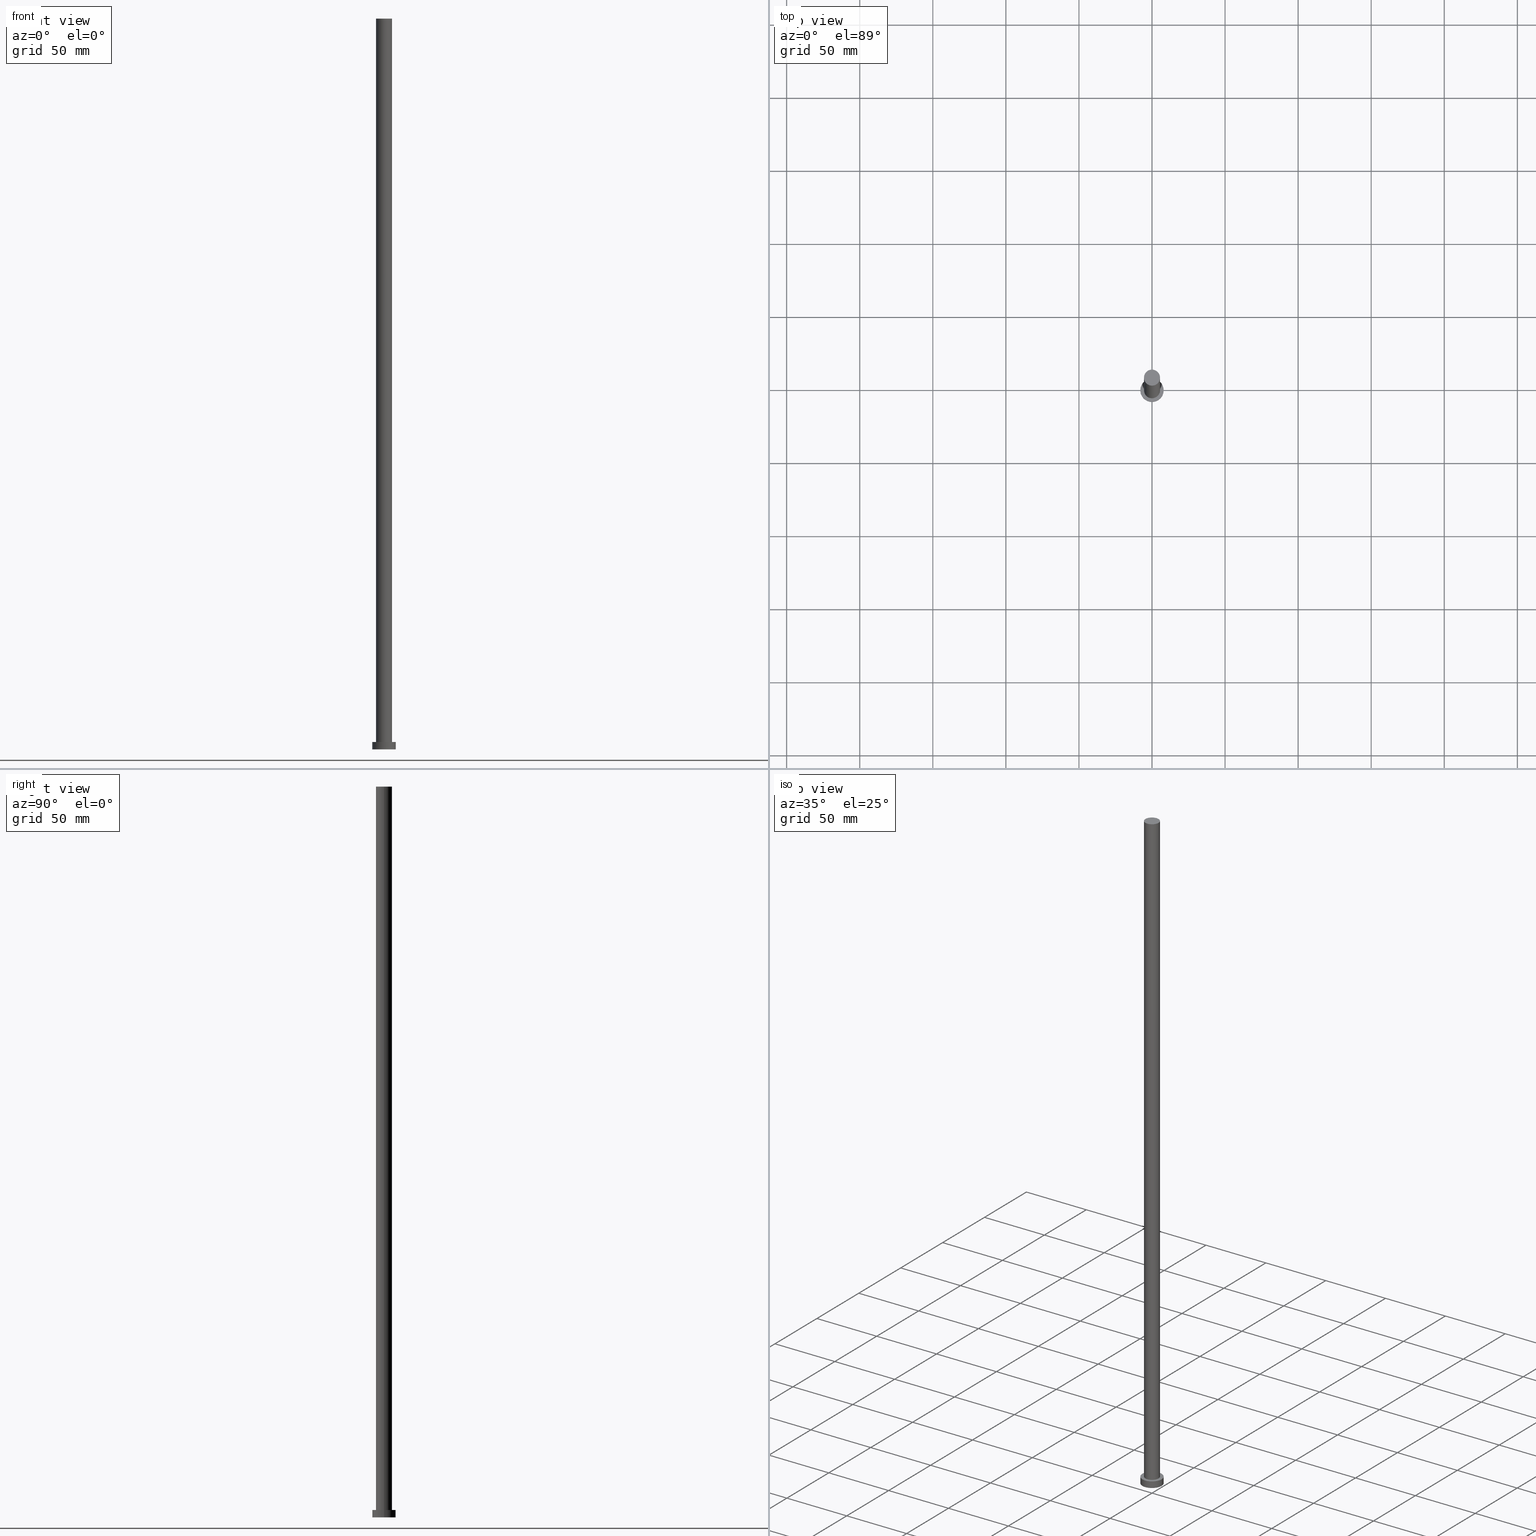
[diagram: canonical four-view strip — front | top / right | iso, engineering-drawing reading convention]
A machine part, canonical four-view strip (front | top / right | iso — engineering-drawing reading convention). The complete STEP part file that produces these views, byte-faithful:
ISO-10303-21;
HEADER;
FILE_DESCRIPTION (( 'STEP AP203' ),
    '1' );
FILE_NAME ('f1d0.STEP',
    '2023-02-12T11:13:44',
    ( '' ),
    ( '' ),
    'SwSTEP 2.0',
    'SolidWorks 2019',
    '' );
FILE_SCHEMA (( 'CONFIG_CONTROL_DESIGN' ));
ENDSEC;

DATA;
#1 = DIRECTION ( 'NONE',  ( -1.000000000000000000, 0.000000000000000000, 0.000000000000000000 ) ) ;
#2 = CIRCLE ( 'NONE', #197, 5.500000000000000000 ) ;
#3 = CARTESIAN_POINT ( 'NONE',  ( 0.000000000000000000, 0.000000000000000000, 0.000000000000000000 ) ) ;
#4 = EDGE_CURVE ( 'NONE', #180, #235, #177, .T. ) ;
#5 = DIRECTION ( 'NONE',  ( 1.000000000000000000, 0.000000000000000000, 0.000000000000000000 ) ) ;
#6 = APPROVAL_DATE_TIME ( #93, #161 ) ;
#7 = VECTOR ( 'NONE', #45, 1000.000000000000000 ) ;
#8 = FACE_BOUND ( 'NONE', #158, .T. ) ;
#9 = COORDINATED_UNIVERSAL_TIME_OFFSET ( 1, 0, .AHEAD. ) ;
#10 = DIRECTION ( 'NONE',  ( 0.000000000000000000, 0.000000000000000000, 1.000000000000000000 ) ) ;
#11 = PERSON_AND_ORGANIZATION ( #218, #201 ) ;
#12 = CALENDAR_DATE ( 2023, 12, 2 ) ;
#13 = VECTOR ( 'NONE', #186, 1000.000000000000000 ) ;
#14 = ORIENTED_EDGE ( 'NONE', *, *, #59, .F. ) ;
#15 = CLOSED_SHELL ( 'NONE', ( #223, #22, #206, #169, #98, #92, #39 ) ) ;
#16 = ORIENTED_EDGE ( 'NONE', *, *, #203, .T. ) ;
#17 = MANIFOLD_SOLID_BREP ( 'P�idat vysunut�m3', #15 ) ;
#18 = UNCERTAINTY_MEASURE_WITH_UNIT (LENGTH_MEASURE( 1.000000000000000082E-05 ), #139, 'distance_accuracy_value', 'NONE');
#19 = CC_DESIGN_PERSON_AND_ORGANIZATION_ASSIGNMENT ( #212, #107, ( #21 ) ) ;
#20 = LINE ( 'NONE', #170, #157 ) ;
#21 = SECURITY_CLASSIFICATION ( '', '', #214 ) ;
#22 = ADVANCED_FACE ( 'NONE', ( #60 ), #142, .T. ) ;
#23 = CARTESIAN_POINT ( 'NONE',  ( 0.000000000000000000, 0.000000000000000000, 500.0000000000000000 ) ) ;
#24 = CC_DESIGN_PERSON_AND_ORGANIZATION_ASSIGNMENT ( #65, #149, ( #181 ) ) ;
#25 = CARTESIAN_POINT ( 'NONE',  ( 0.000000000000000000, 0.000000000000000000, 5.000000000000000000 ) ) ;
#26 = APPROVAL_STATUS ( 'not_yet_approved' ) ;
#27 = DIRECTION ( 'NONE',  ( 1.000000000000000000, 0.000000000000000000, -0.000000000000000000 ) ) ;
#28 = CC_DESIGN_APPROVAL ( #154, ( #126 ) ) ;
#29 = APPLICATION_PROTOCOL_DEFINITION ( 'international standard', 'config_control_design', 1994, #168 ) ;
#30 = CARTESIAN_POINT ( 'NONE',  ( 0.000000000000000000, 0.000000000000000000, 500.0000000000000000 ) ) ;
#31 = CALENDAR_DATE ( 2023, 12, 2 ) ;
#32 = EDGE_CURVE ( 'NONE', #111, #73, #138, .T. ) ;
#33 = CC_DESIGN_SECURITY_CLASSIFICATION ( #21, ( #181 ) ) ;
#34 = CC_DESIGN_PERSON_AND_ORGANIZATION_ASSIGNMENT ( #69, #46, ( #181 ) ) ;
#35 = EDGE_LOOP ( 'NONE', ( #99, #202, #164, #160 ) ) ;
#36 = EDGE_LOOP ( 'NONE', ( #40, #199, #182, #14 ) ) ;
#37 = CARTESIAN_POINT ( 'NONE',  ( 0.000000000000000000, 0.000000000000000000, 500.0000000000000000 ) ) ;
#38 = ORIENTED_EDGE ( 'NONE', *, *, #50, .F. ) ;
#39 = ADVANCED_FACE ( 'NONE', ( #43 ), #246, .T. ) ;
#40 = ORIENTED_EDGE ( 'NONE', *, *, #119, .F. ) ;
#41 = CIRCLE ( 'NONE', #234, 8.000000000000000000 ) ;
#42 = DIRECTION ( 'NONE',  ( -1.000000000000000000, 0.000000000000000000, 0.000000000000000000 ) ) ;
#43 = FACE_OUTER_BOUND ( 'NONE', #253, .T. ) ;
#44 = CC_DESIGN_DATE_AND_TIME_ASSIGNMENT ( #194, #152, ( #21 ) ) ;
#45 = DIRECTION ( 'NONE',  ( -0.000000000000000000, -0.000000000000000000, -1.000000000000000000 ) ) ;
#46 = PERSON_AND_ORGANIZATION_ROLE ( 'design_supplier' ) ;
#47 = DIRECTION ( 'NONE',  ( 0.000000000000000000, 0.000000000000000000, 1.000000000000000000 ) ) ;
#48 = CIRCLE ( 'NONE', #144, 5.500000000000000000 ) ;
#49 = LOCAL_TIME ( 12, 13, 44.00000000000000000, #176 ) ;
#50 = EDGE_CURVE ( 'NONE', #252, #111, #41, .T. ) ;
#51 = EDGE_CURVE ( 'NONE', #114, #53, #48, .T. ) ;
#52 = VERTEX_POINT ( 'NONE', #90 ) ;
#53 = VERTEX_POINT ( 'NONE', #209 ) ;
#54 = AXIS2_PLACEMENT_3D ( 'NONE', #37, #236, #1 ) ;
#55 = DIRECTION ( 'NONE',  ( 1.000000000000000000, 0.000000000000000000, 0.000000000000000000 ) ) ;
#56 = DIRECTION ( 'NONE',  ( -0.000000000000000000, -0.000000000000000000, -1.000000000000000000 ) ) ;
#57 = CC_DESIGN_PERSON_AND_ORGANIZATION_ASSIGNMENT ( #11, #243, ( #126 ) ) ;
#58 = CIRCLE ( 'NONE', #122, 5.500000000000000000 ) ;
#59 = EDGE_CURVE ( 'NONE', #180, #114, #20, .T. ) ;
#60 = FACE_OUTER_BOUND ( 'NONE', #222, .T. ) ;
#61 = CARTESIAN_POINT ( 'NONE',  ( 0.000000000000000000, 0.000000000000000000, 500.0000000000000000 ) ) ;
#62 = APPLICATION_CONTEXT ( 'configuration controlled 3d designs of mechanical parts and assemblies' ) ;
#63 = DIRECTION ( 'NONE',  ( 1.000000000000000000, 0.000000000000000000, 0.000000000000000000 ) ) ;
#64 = LINE ( 'NONE', #105, #151 ) ;
#65 = PERSON_AND_ORGANIZATION ( #218, #201 ) ;
#66 = FACE_OUTER_BOUND ( 'NONE', #35, .T. ) ;
#67 = PERSON_AND_ORGANIZATION ( #218, #201 ) ;
#68 = DIRECTION ( 'NONE',  ( 0.000000000000000000, 0.000000000000000000, 1.000000000000000000 ) ) ;
#69 = PERSON_AND_ORGANIZATION ( #218, #201 ) ;
#70 = AXIS2_PLACEMENT_3D ( 'NONE', #150, #47, #129 ) ;
#71 = APPROVAL_DATE_TIME ( #250, #155 ) ;
#72 = EDGE_CURVE ( 'NONE', #235, #53, #132, .T. ) ;
#73 = VERTEX_POINT ( 'NONE', #104 ) ;
#74 = ORIENTED_EDGE ( 'NONE', *, *, #32, .F. ) ;
#75 = ORIENTED_EDGE ( 'NONE', *, *, #32, .T. ) ;
#76 = PRODUCT_DEFINITION_SHAPE ( 'NONE', 'NONE',  #126 ) ;
#77 = ORIENTED_EDGE ( 'NONE', *, *, #175, .T. ) ;
#78 = AXIS2_PLACEMENT_3D ( 'NONE', #61, #84, #127 ) ;
#79 = DIRECTION ( 'NONE',  ( -0.000000000000000000, -0.000000000000000000, -1.000000000000000000 ) ) ;
#80 = CARTESIAN_POINT ( 'NONE',  ( 0.000000000000000000, 0.000000000000000000, 5.000000000000000000 ) ) ;
#81 = ORIENTED_EDGE ( 'NONE', *, *, #232, .F. ) ;
#82 = AXIS2_PLACEMENT_3D ( 'NONE', #172, #244, #27 ) ;
#83 = LOCAL_TIME ( 12, 13, 44.00000000000000000, #178 ) ;
#84 = DIRECTION ( 'NONE',  ( -0.000000000000000000, -0.000000000000000000, -1.000000000000000000 ) ) ;
#85 = COORDINATED_UNIVERSAL_TIME_OFFSET ( 1, 0, .AHEAD. ) ;
#86 = CYLINDRICAL_SURFACE ( 'NONE', #78, 5.500000000000000000 ) ;
#87 = PERSON_AND_ORGANIZATION ( #218, #201 ) ;
#88 = DIRECTION ( 'NONE',  ( 1.000000000000000000, 0.000000000000000000, 0.000000000000000000 ) ) ;
#89 = MECHANICAL_CONTEXT ( 'NONE', #62, 'mechanical' ) ;
#90 = CARTESIAN_POINT ( 'NONE',  ( -8.000000000000000000, 0.000000000000000000, 0.000000000000000000 ) ) ;
#91 = CALENDAR_DATE ( 2023, 12, 2 ) ;
#92 = ADVANCED_FACE ( 'NONE', ( #66 ), #86, .T. ) ;
#93 = DATE_AND_TIME ( #12, #49 ) ;
#94 = ORIENTED_EDGE ( 'NONE', *, *, #4, .T. ) ;
#95 = ORIENTED_EDGE ( 'NONE', *, *, #203, .F. ) ;
#96 = EDGE_LOOP ( 'NONE', ( #74, #38, #156, #77 ) ) ;
#97 = DIRECTION ( 'NONE',  ( -1.000000000000000000, 0.000000000000000000, 0.000000000000000000 ) ) ;
#98 = ADVANCED_FACE ( 'NONE', ( #211 ), #224, .F. ) ;
#99 = ORIENTED_EDGE ( 'NONE', *, *, #72, .F. ) ;
#100 = AXIS2_PLACEMENT_3D ( 'NONE', #208, #56, #97 ) ;
#101 =( NAMED_UNIT ( * ) SI_UNIT ( $, .STERADIAN. ) SOLID_ANGLE_UNIT ( ) );
#102 = DIRECTION ( 'NONE',  ( 0.000000000000000000, 0.000000000000000000, 1.000000000000000000 ) ) ;
#103 = FACE_OUTER_BOUND ( 'NONE', #36, .T. ) ;
#104 = CARTESIAN_POINT ( 'NONE',  ( 8.000000000000000000, 9.797174393178825657E-16, 0.000000000000000000 ) ) ;
#105 = CARTESIAN_POINT ( 'NONE',  ( -8.000000000000000000, 0.000000000000000000, 5.000000000000000000 ) ) ;
#106 = DIRECTION ( 'NONE',  ( 1.000000000000000000, 0.000000000000000000, -0.000000000000000000 ) ) ;
#107 = PERSON_AND_ORGANIZATION_ROLE ( 'classification_officer' ) ;
#108 = CARTESIAN_POINT ( 'NONE',  ( 0.000000000000000000, 0.000000000000000000, 5.000000000000000000 ) ) ;
#109 = DIRECTION ( 'NONE',  ( 0.000000000000000000, 0.000000000000000000, 1.000000000000000000 ) ) ;
#110 = DIRECTION ( 'NONE',  ( 0.000000000000000000, 0.000000000000000000, 1.000000000000000000 ) ) ;
#111 = VERTEX_POINT ( 'NONE', #228 ) ;
#112 = LOCAL_TIME ( 12, 13, 44.00000000000000000, #9 ) ;
#113 = ADVANCED_BREP_SHAPE_REPRESENTATION ( 'f1d0', ( #17, #239 ), #221 ) ;
#114 = VERTEX_POINT ( 'NONE', #191 ) ;
#115 = AXIS2_PLACEMENT_3D ( 'NONE', #167, #241, #185 ) ;
#116 = PRODUCT ( 'f1d0', 'f1d0', '', ( #89 ) ) ;
#117 = EDGE_LOOP ( 'NONE', ( #135, #118 ) ) ;
#118 = ORIENTED_EDGE ( 'NONE', *, *, #187, .F. ) ;
#119 = EDGE_CURVE ( 'NONE', #235, #180, #2, .T. ) ;
#120 = CARTESIAN_POINT ( 'NONE',  ( 8.000000000000000000, 9.797174393178825657E-16, 5.000000000000000000 ) ) ;
#121 = ORIENTED_EDGE ( 'NONE', *, *, #51, .F. ) ;
#122 = AXIS2_PLACEMENT_3D ( 'NONE', #80, #102, #123 ) ;
#123 = DIRECTION ( 'NONE',  ( 1.000000000000000000, 0.000000000000000000, 0.000000000000000000 ) ) ;
#124 = AXIS2_PLACEMENT_3D ( 'NONE', #108, #229, #55 ) ;
#125 = CARTESIAN_POINT ( 'NONE',  ( 0.000000000000000000, 0.000000000000000000, 5.000000000000000000 ) ) ;
#126 = PRODUCT_DEFINITION ( 'NEZN�M�', '', #181, #162 ) ;
#127 = DIRECTION ( 'NONE',  ( -1.000000000000000000, 0.000000000000000000, 0.000000000000000000 ) ) ;
#128 = PERSON_AND_ORGANIZATION_ROLE ( 'design_owner' ) ;
#129 = DIRECTION ( 'NONE',  ( 1.000000000000000000, 0.000000000000000000, 0.000000000000000000 ) ) ;
#130 = PERSON_AND_ORGANIZATION ( #218, #201 ) ;
#131 = EDGE_CURVE ( 'NONE', #252, #52, #64, .T. ) ;
#132 = LINE ( 'NONE', #242, #7 ) ;
#133 = CC_DESIGN_APPROVAL ( #161, ( #181 ) ) ;
#134 = APPROVAL_ROLE ( '' ) ;
#135 = ORIENTED_EDGE ( 'NONE', *, *, #175, .F. ) ;
#136 = ORIENTED_EDGE ( 'NONE', *, *, #119, .T. ) ;
#137 = LOCAL_TIME ( 12, 13, 44.00000000000000000, #210 ) ;
#138 = LINE ( 'NONE', #120, #13 ) ;
#139 =( LENGTH_UNIT ( ) NAMED_UNIT ( * ) SI_UNIT ( .MILLI., .METRE. ) );
#140 = CYLINDRICAL_SURFACE ( 'NONE', #165, 8.000000000000000000 ) ;
#141 = CIRCLE ( 'NONE', #124, 8.000000000000000000 ) ;
#142 = CYLINDRICAL_SURFACE ( 'NONE', #100, 8.000000000000000000 ) ;
#143 = DIRECTION ( 'NONE',  ( -0.000000000000000000, -0.000000000000000000, -1.000000000000000000 ) ) ;
#144 = AXIS2_PLACEMENT_3D ( 'NONE', #226, #109, #215 ) ;
#145 = CC_DESIGN_APPROVAL ( #155, ( #21 ) ) ;
#146 = FACE_OUTER_BOUND ( 'NONE', #198, .T. ) ;
#147 = APPROVAL_ROLE ( '' ) ;
#148 = DIRECTION ( 'NONE',  ( 1.000000000000000000, 0.000000000000000000, -0.000000000000000000 ) ) ;
#149 = PERSON_AND_ORGANIZATION_ROLE ( 'creator' ) ;
#150 = CARTESIAN_POINT ( 'NONE',  ( 0.000000000000000000, 0.000000000000000000, 0.000000000000000000 ) ) ;
#151 = VECTOR ( 'NONE', #189, 1000.000000000000000 ) ;
#152 = DATE_TIME_ROLE ( 'classification_date' ) ;
#153 = APPROVAL_STATUS ( 'not_yet_approved' ) ;
#154 = APPROVAL ( #192, 'NEUR�EN�' ) ;
#155 = APPROVAL ( #153, 'NEUR�EN�' ) ;
#156 = ORIENTED_EDGE ( 'NONE', *, *, #131, .T. ) ;
#157 = VECTOR ( 'NONE', #143, 1000.000000000000000 ) ;
#158 = EDGE_LOOP ( 'NONE', ( #121, #81 ) ) ;
#159 = APPROVAL_PERSON_ORGANIZATION ( #130, #161, #147 ) ;
#160 = ORIENTED_EDGE ( 'NONE', *, *, #51, .T. ) ;
#161 = APPROVAL ( #26, 'NEUR�EN�' ) ;
#162 = DESIGN_CONTEXT ( 'detailed design', #168, 'design' ) ;
#163 = AXIS2_PLACEMENT_3D ( 'NONE', #30, #195, #148 ) ;
#164 = ORIENTED_EDGE ( 'NONE', *, *, #59, .T. ) ;
#165 = AXIS2_PLACEMENT_3D ( 'NONE', #166, #79, #42 ) ;
#166 = CARTESIAN_POINT ( 'NONE',  ( 0.000000000000000000, 0.000000000000000000, 5.000000000000000000 ) ) ;
#167 = CARTESIAN_POINT ( 'NONE',  ( 0.000000000000000000, 0.000000000000000000, 500.0000000000000000 ) ) ;
#168 = APPLICATION_CONTEXT ( 'configuration controlled 3d designs of mechanical parts and assemblies' ) ;
#169 = ADVANCED_FACE ( 'NONE', ( #8, #146 ), #174, .T. ) ;
#170 = CARTESIAN_POINT ( 'NONE',  ( -5.500000000000000000, 0.000000000000000000, 500.0000000000000000 ) ) ;
#171 = DIRECTION ( 'NONE',  ( 1.000000000000000000, 0.000000000000000000, 0.000000000000000000 ) ) ;
#172 = CARTESIAN_POINT ( 'NONE',  ( 0.000000000000000000, 0.000000000000000000, 0.000000000000000000 ) ) ;
#173 = PERSON_AND_ORGANIZATION ( #218, #201 ) ;
#174 = PLANE ( 'NONE',  #254 ) ;
#175 = EDGE_CURVE ( 'NONE', #52, #73, #225, .T. ) ;
#176 = COORDINATED_UNIVERSAL_TIME_OFFSET ( 1, 0, .AHEAD. ) ;
#177 = CIRCLE ( 'NONE', #115, 5.500000000000000000 ) ;
#178 = COORDINATED_UNIVERSAL_TIME_OFFSET ( 1, 0, .AHEAD. ) ;
#179 = CC_DESIGN_PERSON_AND_ORGANIZATION_ASSIGNMENT ( #87, #128, ( #116 ) ) ;
#180 = VERTEX_POINT ( 'NONE', #213 ) ;
#181 = PRODUCT_DEFINITION_FORMATION_WITH_SPECIFIED_SOURCE ( 'LIBOVOLN�', '', #116, .NOT_KNOWN. ) ;
#182 = ORIENTED_EDGE ( 'NONE', *, *, #232, .T. ) ;
#183 = AXIS2_PLACEMENT_3D ( 'NONE', #3, #193, #88 ) ;
#184 = PRODUCT_RELATED_PRODUCT_CATEGORY ( 'detail', '', ( #116 ) ) ;
#185 = DIRECTION ( 'NONE',  ( 1.000000000000000000, 0.000000000000000000, 0.000000000000000000 ) ) ;
#186 = DIRECTION ( 'NONE',  ( -0.000000000000000000, -0.000000000000000000, -1.000000000000000000 ) ) ;
#187 = EDGE_CURVE ( 'NONE', #73, #52, #188, .T. ) ;
#188 = CIRCLE ( 'NONE', #183, 8.000000000000000000 ) ;
#189 = DIRECTION ( 'NONE',  ( -0.000000000000000000, -0.000000000000000000, -1.000000000000000000 ) ) ;
#190 = CARTESIAN_POINT ( 'NONE',  ( 0.000000000000000000, 0.000000000000000000, 0.000000000000000000 ) ) ;
#191 = CARTESIAN_POINT ( 'NONE',  ( -5.500000000000000000, 0.000000000000000000, 5.000000000000000000 ) ) ;
#192 = APPROVAL_STATUS ( 'not_yet_approved' ) ;
#193 = DIRECTION ( 'NONE',  ( 0.000000000000000000, 0.000000000000000000, 1.000000000000000000 ) ) ;
#194 = DATE_AND_TIME ( #249, #83 ) ;
#195 = DIRECTION ( 'NONE',  ( 0.000000000000000000, 0.000000000000000000, 1.000000000000000000 ) ) ;
#196 = APPROVAL_DATE_TIME ( #216, #154 ) ;
#197 = AXIS2_PLACEMENT_3D ( 'NONE', #23, #10, #5 ) ;
#198 = EDGE_LOOP ( 'NONE', ( #220, #16 ) ) ;
#199 = ORIENTED_EDGE ( 'NONE', *, *, #72, .T. ) ;
#200 = ORIENTED_EDGE ( 'NONE', *, *, #131, .F. ) ;
#201 = ORGANIZATION ( 'NEUR�EN�', 'NEUR�EN�', '' ) ;
#202 = ORIENTED_EDGE ( 'NONE', *, *, #4, .F. ) ;
#203 = EDGE_CURVE ( 'NONE', #111, #252, #141, .T. ) ;
#204 = CYLINDRICAL_SURFACE ( 'NONE', #54, 5.500000000000000000 ) ;
#205 = CARTESIAN_POINT ( 'NONE',  ( -8.000000000000000000, 0.000000000000000000, 5.000000000000000000 ) ) ;
#206 = ADVANCED_FACE ( 'NONE', ( #240 ), #140, .T. ) ;
#207 = CARTESIAN_POINT ( 'NONE',  ( 5.500000000000000000, 6.735557395310442023E-16, 500.0000000000000000 ) ) ;
#208 = CARTESIAN_POINT ( 'NONE',  ( 0.000000000000000000, 0.000000000000000000, 5.000000000000000000 ) ) ;
#209 = CARTESIAN_POINT ( 'NONE',  ( 5.500000000000000000, 6.735557395310442023E-16, 5.000000000000000000 ) ) ;
#210 = COORDINATED_UNIVERSAL_TIME_OFFSET ( 1, 0, .AHEAD. ) ;
#211 = FACE_OUTER_BOUND ( 'NONE', #117, .T. ) ;
#212 = PERSON_AND_ORGANIZATION ( #218, #201 ) ;
#213 = CARTESIAN_POINT ( 'NONE',  ( -5.500000000000000000, 0.000000000000000000, 500.0000000000000000 ) ) ;
#214 = SECURITY_CLASSIFICATION_LEVEL ( 'unclassified' ) ;
#215 = DIRECTION ( 'NONE',  ( 1.000000000000000000, 0.000000000000000000, 0.000000000000000000 ) ) ;
#216 = DATE_AND_TIME ( #31, #112 ) ;
#217 = DATE_TIME_ROLE ( 'creation_date' ) ;
#218 = PERSON ( 'NEUR�EN�', 'NEUR�EN�', 'NEUR�EN�', ('NEUR�EN�'), ('NEUR�EN�'), ('NEUR�EN�') ) ;
#219 = ORIENTED_EDGE ( 'NONE', *, *, #187, .T. ) ;
#220 = ORIENTED_EDGE ( 'NONE', *, *, #50, .T. ) ;
#221 =( GEOMETRIC_REPRESENTATION_CONTEXT ( 3 ) GLOBAL_UNCERTAINTY_ASSIGNED_CONTEXT ( ( #18 ) ) GLOBAL_UNIT_ASSIGNED_CONTEXT ( ( #139, #238, #101 ) ) REPRESENTATION_CONTEXT ( 'NONE', 'WORKASPACE' ) );
#222 = EDGE_LOOP ( 'NONE', ( #95, #75, #219, #200 ) ) ;
#223 = ADVANCED_FACE ( 'NONE', ( #103 ), #204, .T. ) ;
#224 = PLANE ( 'NONE',  #82 ) ;
#225 = CIRCLE ( 'NONE', #70, 8.000000000000000000 ) ;
#226 = CARTESIAN_POINT ( 'NONE',  ( 0.000000000000000000, 0.000000000000000000, 5.000000000000000000 ) ) ;
#227 = CC_DESIGN_DATE_AND_TIME_ASSIGNMENT ( #245, #217, ( #126 ) ) ;
#228 = CARTESIAN_POINT ( 'NONE',  ( 8.000000000000000000, 9.797174393178825657E-16, 5.000000000000000000 ) ) ;
#229 = DIRECTION ( 'NONE',  ( 0.000000000000000000, 0.000000000000000000, 1.000000000000000000 ) ) ;
#230 = CALENDAR_DATE ( 2023, 12, 2 ) ;
#231 = LOCAL_TIME ( 12, 13, 44.00000000000000000, #85 ) ;
#232 = EDGE_CURVE ( 'NONE', #53, #114, #58, .T. ) ;
#233 = SHAPE_DEFINITION_REPRESENTATION ( #76, #113 ) ;
#234 = AXIS2_PLACEMENT_3D ( 'NONE', #125, #68, #171 ) ;
#235 = VERTEX_POINT ( 'NONE', #207 ) ;
#236 = DIRECTION ( 'NONE',  ( -0.000000000000000000, -0.000000000000000000, -1.000000000000000000 ) ) ;
#237 = APPLICATION_PROTOCOL_DEFINITION ( 'international standard', 'config_control_design', 1994, #62 ) ;
#238 =( NAMED_UNIT ( * ) PLANE_ANGLE_UNIT ( ) SI_UNIT ( $, .RADIAN. ) );
#239 = AXIS2_PLACEMENT_3D ( 'NONE', #190, #110, #63 ) ;
#240 = FACE_OUTER_BOUND ( 'NONE', #96, .T. ) ;
#241 = DIRECTION ( 'NONE',  ( 0.000000000000000000, 0.000000000000000000, 1.000000000000000000 ) ) ;
#242 = CARTESIAN_POINT ( 'NONE',  ( 5.500000000000000000, 6.735557395310442023E-16, 500.0000000000000000 ) ) ;
#243 = PERSON_AND_ORGANIZATION_ROLE ( 'creator' ) ;
#244 = DIRECTION ( 'NONE',  ( 0.000000000000000000, 0.000000000000000000, 1.000000000000000000 ) ) ;
#245 = DATE_AND_TIME ( #91, #137 ) ;
#246 = PLANE ( 'NONE',  #163 ) ;
#247 = APPROVAL_ROLE ( '' ) ;
#248 = DIRECTION ( 'NONE',  ( 0.000000000000000000, 0.000000000000000000, 1.000000000000000000 ) ) ;
#249 = CALENDAR_DATE ( 2023, 12, 2 ) ;
#250 = DATE_AND_TIME ( #230, #231 ) ;
#251 = APPROVAL_PERSON_ORGANIZATION ( #67, #154, #134 ) ;
#252 = VERTEX_POINT ( 'NONE', #205 ) ;
#253 = EDGE_LOOP ( 'NONE', ( #94, #136 ) ) ;
#254 = AXIS2_PLACEMENT_3D ( 'NONE', #25, #248, #106 ) ;
#255 = APPROVAL_PERSON_ORGANIZATION ( #173, #155, #247 ) ;
ENDSEC;
END-ISO-10303-21;
